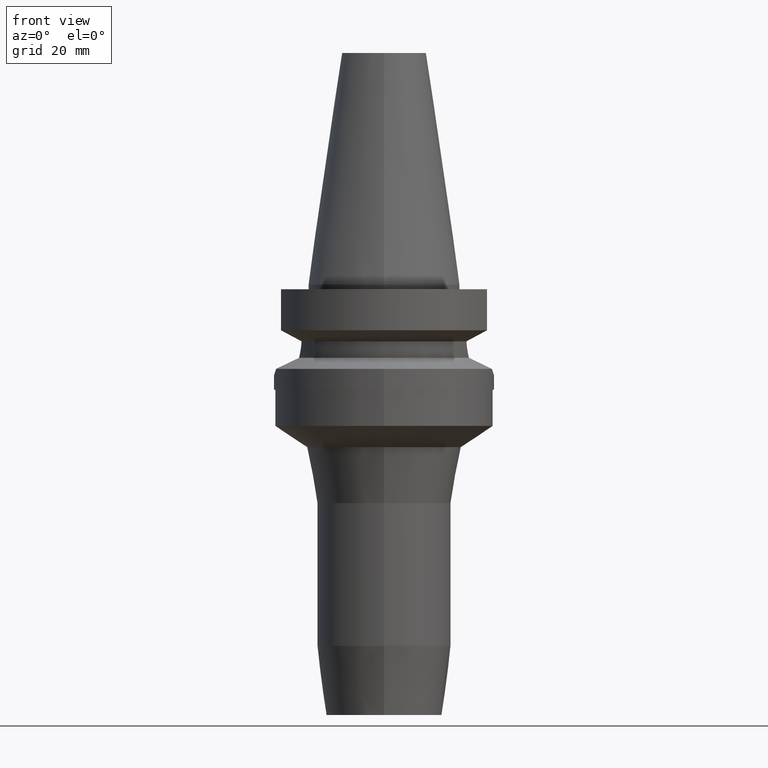
[diagram: clean part render]
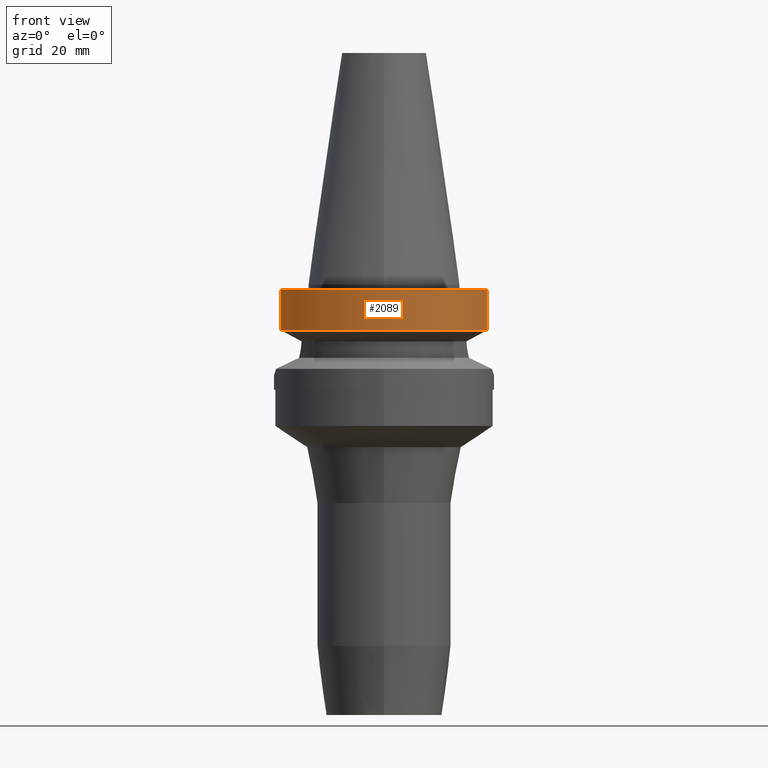
[diagram: same view with one face highlighted and labeled with its STEP entity id]
A machine part, front view. The second image highlights one B-rep face of the part: STEP entity #2089.
In plain terms, the highlighted cylindrical surface (partial cylindrical patch) has radius 23 mm, axis along (0, 0, -1).
Its self-contained STEP definition (entity closure, byte-faithful):
#921=CARTESIAN_POINT('',(0.E0,1.902121408436E-14,-1.E0));
#922=DIRECTION('',(0.E0,0.E0,-1.E0));
#923=DIRECTION('',(9.367496997598E-1,-3.5E-1,0.E0));
#924=AXIS2_PLACEMENT_3D('',#921,#922,#923);
#929=CARTESIAN_POINT('',(0.E0,1.902121408436E-14,-1.E0));
#930=DIRECTION('',(0.E0,0.E0,-1.E0));
#931=DIRECTION('',(0.E0,-1.E0,0.E0));
#932=AXIS2_PLACEMENT_3D('',#929,#930,#931);
#983=CARTESIAN_POINT('',(-2.154524325238E1,-8.049999577366E0,
-9.567211146629E0));
#1000=CARTESIAN_POINT('',(0.E0,1.093341284897E-14,-9.567208369711E0));
#1001=DIRECTION('',(0.E0,0.E0,1.E0));
#1002=DIRECTION('',(-9.367496997597E-1,-3.500000000001E-1,0.E0));
#1003=AXIS2_PLACEMENT_3D('',#1000,#1001,#1002);
#1008=CARTESIAN_POINT('',(0.E0,1.093341284897E-14,-9.567208369711E0));
#1009=DIRECTION('',(0.E0,0.E0,1.E0));
#1010=DIRECTION('',(0.E0,-1.E0,0.E0));
#1011=AXIS2_PLACEMENT_3D('',#1008,#1009,#1010);
#1052=DIRECTION('',(1.843189971013E-8,-4.933165888407E-8,1.E0));
#1053=VECTOR('',#1052,8.567211146629E0);
#1054=CARTESIAN_POINT('',(-2.154524325238E1,-8.049999577366E0,
-9.567211146629E0));
#1055=LINE('',#1054,#1053);
#1059=DIRECTION('',(-9.134802528421E-8,-2.444862515858E-7,-1.E0));
#1060=VECTOR('',#1059,8.567194606554E0);
#1061=CARTESIAN_POINT('',(2.154524309447E1,-8.05E0,-1.E0));
#1062=LINE('',#1061,#1060);
#1241=VERTEX_POINT('',#983);
#1242=CARTESIAN_POINT('',(0.E0,-2.3E1,-9.567208369711E0));
#1243=CARTESIAN_POINT('',(2.154524309447E1,-8.050000000001E0,
-9.567208369711E0));
#1244=VERTEX_POINT('',#1242);
#1245=VERTEX_POINT('',#1243);
#1252=CARTESIAN_POINT('',(-2.154524309447E1,-8.05E0,-1.E0));
#1253=VERTEX_POINT('',#1252);
#1266=CARTESIAN_POINT('',(2.154524309447E1,-8.05E0,-1.E0));
#1267=VERTEX_POINT('',#1266);
#1268=CARTESIAN_POINT('',(0.E0,-2.3E1,-1.E0));
#1269=VERTEX_POINT('',#1268);
#2075=CARTESIAN_POINT('',(0.E0,1.902121408436E-14,5.532E1));
#2076=DIRECTION('',(0.E0,0.E0,-1.E0));
#2077=DIRECTION('',(0.E0,-1.E0,0.E0));
#2078=AXIS2_PLACEMENT_3D('',#2075,#2076,#2077);
#2079=CYLINDRICAL_SURFACE('',#2078,2.3E1);
#2080=ORIENTED_EDGE('',*,*,#2049,.T.);
#2081=ORIENTED_EDGE('',*,*,#2012,.F.);
#2082=ORIENTED_EDGE('',*,*,#2010,.F.);
#2084=ORIENTED_EDGE('',*,*,#2083,.T.);
#2085=ORIENTED_EDGE('',*,*,#2062,.F.);
#2086=ORIENTED_EDGE('',*,*,#2060,.F.);
#2087=EDGE_LOOP('',(#2080,#2081,#2082,#2084,#2085,#2086));
#2088=FACE_OUTER_BOUND('',#2087,.F.);
#925=CIRCLE('',#924,2.3E1);
#933=CIRCLE('',#932,2.3E1);
#1004=CIRCLE('',#1003,2.3E1);
#1012=CIRCLE('',#1011,2.3E1);
#2010=EDGE_CURVE('',#1267,#1269,#925,.T.);
#2012=EDGE_CURVE('',#1269,#1253,#933,.T.);
#2049=EDGE_CURVE('',#1241,#1253,#1055,.T.);
#2060=EDGE_CURVE('',#1241,#1244,#1004,.T.);
#2062=EDGE_CURVE('',#1244,#1245,#1012,.T.);
#2083=EDGE_CURVE('',#1267,#1245,#1062,.T.);
#2089=ADVANCED_FACE('',(#2088),#2079,.T.);